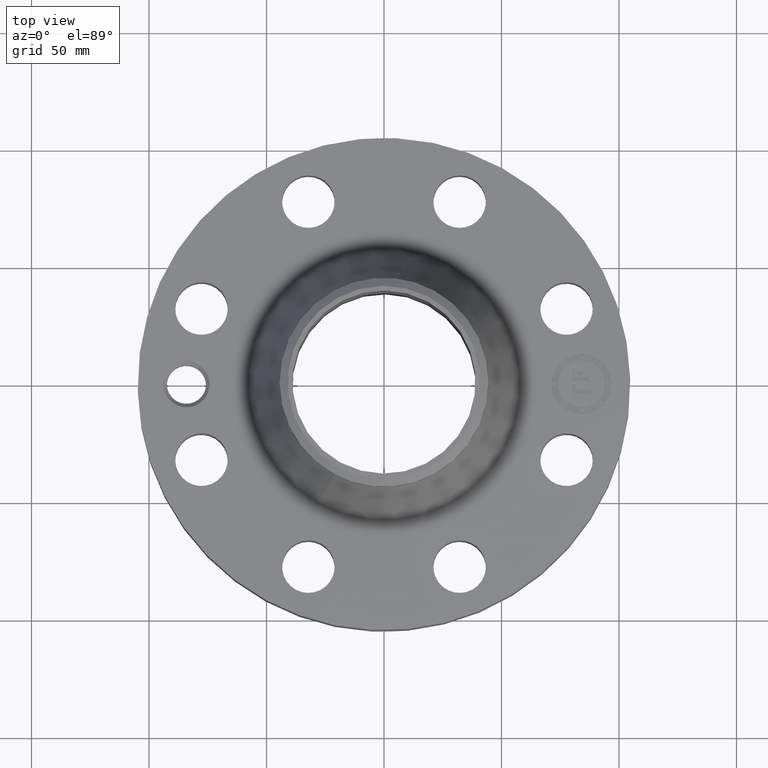
[diagram: clean part render]
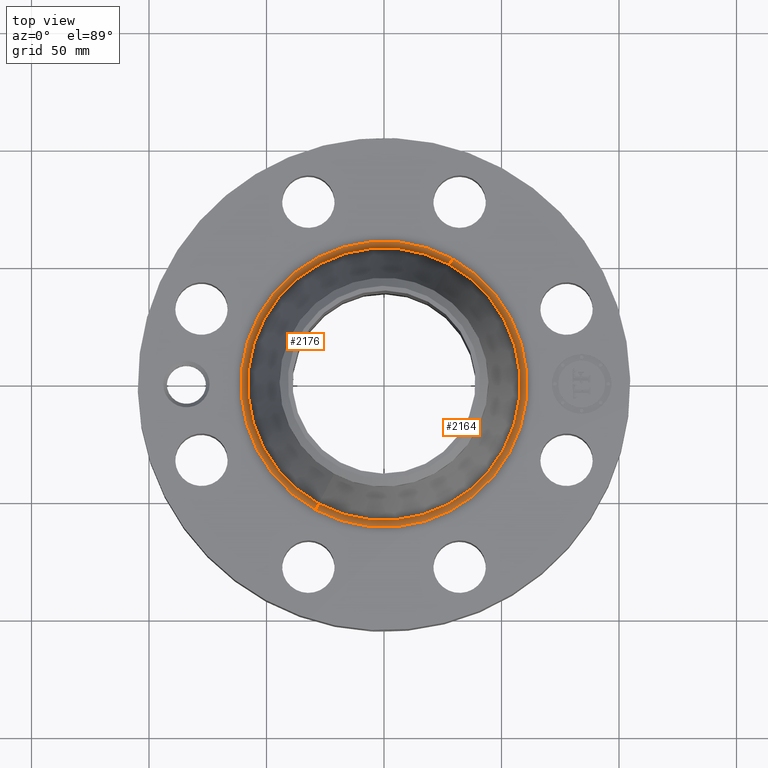
[diagram: same view with one multi-face feature highlighted, each face labeled with its STEP entity id]
A machine part, top view. The highlighted faces form ONE feature: a constant-radius fillet chain: 2 tangent blend faces with common blend radius 3.048 mm. The faces share edges in the B-rep.
Their STEP definitions:
[1] entity #2176 (Torus):
#559=AXIS2_PLACEMENT_3D('Circle Axis2P3D',#557,#558,$) ;
#2137=AXIS2_PLACEMENT_3D('Torus Axis2P3D',#2134,#2135,#2136) ;
#2141=AXIS2_PLACEMENT_3D('Circle Axis2P3D',#2139,#2140,$) ;
#2155=AXIS2_PLACEMENT_3D('Circle Axis2P3D',#2153,#2154,$) ;
#2167=AXIS2_PLACEMENT_3D('Circle Axis2P3D',#2165,#2166,$) ;
#557=CARTESIAN_POINT('Axis2P3D Location',(0.,0.,1.75000000001)) ;
#561=CARTESIAN_POINT('Vertex',(-1.14876916276,-2.10280784752,1.75000000001)) ;
#563=CARTESIAN_POINT('Vertex',(1.14876916276,2.10280784752,1.75000000001)) ;
#2134=CARTESIAN_POINT('Axis2P3D Location',(0.,0.,1.87000000001)) ;
#2139=CARTESIAN_POINT('Axis2P3D Location',(1.14876916276,2.10280784752,1.87000000001)) ;
#2143=CARTESIAN_POINT('Vertex',(1.09426162229,2.00303246395,1.83160988584)) ;
#2150=CARTESIAN_POINT('Vertex',(-1.09426162229,-2.00303246395,1.83160988584)) ;
#2153=CARTESIAN_POINT('Axis2P3D Location',(-1.14876916276,-2.10280784752,1.87000000001)) ;
#2165=CARTESIAN_POINT('Axis2P3D Location',(0.,0.,1.83160988584)) ;
#558=DIRECTION('Axis2P3D Direction',(0.,0.,-0.0393700787402)) ;
#2135=DIRECTION('Axis2P3D Direction',(0.,0.,-0.0393700787402)) ;
#2136=DIRECTION('Axis2P3D XDirection',(-0.0188750212049,-0.0345504945626,0.)) ;
#2140=DIRECTION('Axis2P3D Direction',(-0.0345504945626,0.0188750212049,0.)) ;
#2154=DIRECTION('Axis2P3D Direction',(0.0345504945626,-0.0188750212049,0.)) ;
#2166=DIRECTION('Axis2P3D Direction',(0.,0.,-0.0393700787402)) ;
#2171=ORIENTED_EDGE('',*,*,#565,.F.) ;
#2172=ORIENTED_EDGE('',*,*,#2157,.T.) ;
#2173=ORIENTED_EDGE('',*,*,#2169,.T.) ;
#2174=ORIENTED_EDGE('',*,*,#2145,.F.) ;
#2176=ADVANCED_FACE('PartBody',(#2175),#2138,.F.) ;
#560=CIRCLE('generated circle',#559,2.39613677258) ;
#2142=CIRCLE('generated circle',#2141,0.12) ;
#2156=CIRCLE('generated circle',#2155,0.12) ;
#2168=CIRCLE('generated circle',#2167,2.2824433289) ;
#2138=TOROIDAL_SURFACE('homeo Torus',#2137,2.39613677258,0.12) ;
#565=EDGE_CURVE('',#562,#564,#560,.T.) ;
#2145=EDGE_CURVE('',#564,#2144,#2142,.T.) ;
#2157=EDGE_CURVE('',#562,#2151,#2156,.T.) ;
#2169=EDGE_CURVE('',#2151,#2144,#2168,.T.) ;
#2170=EDGE_LOOP('',(#2171,#2172,#2173,#2174)) ;
#2175=FACE_OUTER_BOUND('',#2170,.T.) ;
#562=VERTEX_POINT('',#561) ;
#564=VERTEX_POINT('',#563) ;
#2144=VERTEX_POINT('',#2143) ;
#2151=VERTEX_POINT('',#2150) ;
[2] entity #2164 (Torus):
#568=AXIS2_PLACEMENT_3D('Circle Axis2P3D',#566,#567,$) ;
#2137=AXIS2_PLACEMENT_3D('Torus Axis2P3D',#2134,#2135,#2136) ;
#2141=AXIS2_PLACEMENT_3D('Circle Axis2P3D',#2139,#2140,$) ;
#2148=AXIS2_PLACEMENT_3D('Circle Axis2P3D',#2146,#2147,$) ;
#2155=AXIS2_PLACEMENT_3D('Circle Axis2P3D',#2153,#2154,$) ;
#561=CARTESIAN_POINT('Vertex',(-1.14876916276,-2.10280784752,1.75000000001)) ;
#563=CARTESIAN_POINT('Vertex',(1.14876916276,2.10280784752,1.75000000001)) ;
#566=CARTESIAN_POINT('Axis2P3D Location',(0.,0.,1.75000000001)) ;
#2134=CARTESIAN_POINT('Axis2P3D Location',(0.,0.,1.87000000001)) ;
#2139=CARTESIAN_POINT('Axis2P3D Location',(1.14876916276,2.10280784752,1.87000000001)) ;
#2143=CARTESIAN_POINT('Vertex',(1.09426162229,2.00303246395,1.83160988584)) ;
#2146=CARTESIAN_POINT('Axis2P3D Location',(0.,0.,1.83160988584)) ;
#2150=CARTESIAN_POINT('Vertex',(-1.09426162229,-2.00303246395,1.83160988584)) ;
#2153=CARTESIAN_POINT('Axis2P3D Location',(-1.14876916276,-2.10280784752,1.87000000001)) ;
#567=DIRECTION('Axis2P3D Direction',(0.,0.,-0.0393700787402)) ;
#2135=DIRECTION('Axis2P3D Direction',(0.,0.,-0.0393700787402)) ;
#2136=DIRECTION('Axis2P3D XDirection',(-0.0188750212049,-0.0345504945626,0.)) ;
#2140=DIRECTION('Axis2P3D Direction',(-0.0345504945626,0.0188750212049,0.)) ;
#2147=DIRECTION('Axis2P3D Direction',(0.,0.,-0.0393700787402)) ;
#2154=DIRECTION('Axis2P3D Direction',(0.0345504945626,-0.0188750212049,0.)) ;
#2159=ORIENTED_EDGE('',*,*,#570,.F.) ;
#2160=ORIENTED_EDGE('',*,*,#2145,.T.) ;
#2161=ORIENTED_EDGE('',*,*,#2152,.T.) ;
#2162=ORIENTED_EDGE('',*,*,#2157,.F.) ;
#2164=ADVANCED_FACE('PartBody',(#2163),#2138,.F.) ;
#569=CIRCLE('generated circle',#568,2.39613677258) ;
#2142=CIRCLE('generated circle',#2141,0.12) ;
#2149=CIRCLE('generated circle',#2148,2.2824433289) ;
#2156=CIRCLE('generated circle',#2155,0.12) ;
#2138=TOROIDAL_SURFACE('homeo Torus',#2137,2.39613677258,0.12) ;
#570=EDGE_CURVE('',#564,#562,#569,.T.) ;
#2145=EDGE_CURVE('',#564,#2144,#2142,.T.) ;
#2152=EDGE_CURVE('',#2144,#2151,#2149,.T.) ;
#2157=EDGE_CURVE('',#562,#2151,#2156,.T.) ;
#2158=EDGE_LOOP('',(#2159,#2160,#2161,#2162)) ;
#2163=FACE_OUTER_BOUND('',#2158,.T.) ;
#562=VERTEX_POINT('',#561) ;
#564=VERTEX_POINT('',#563) ;
#2144=VERTEX_POINT('',#2143) ;
#2151=VERTEX_POINT('',#2150) ;